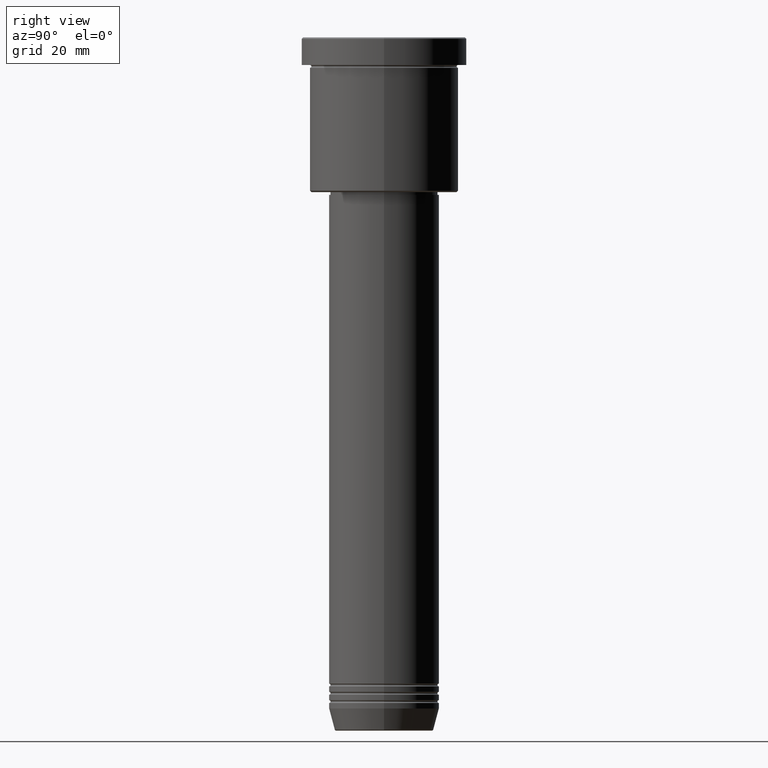
[diagram: clean part render]
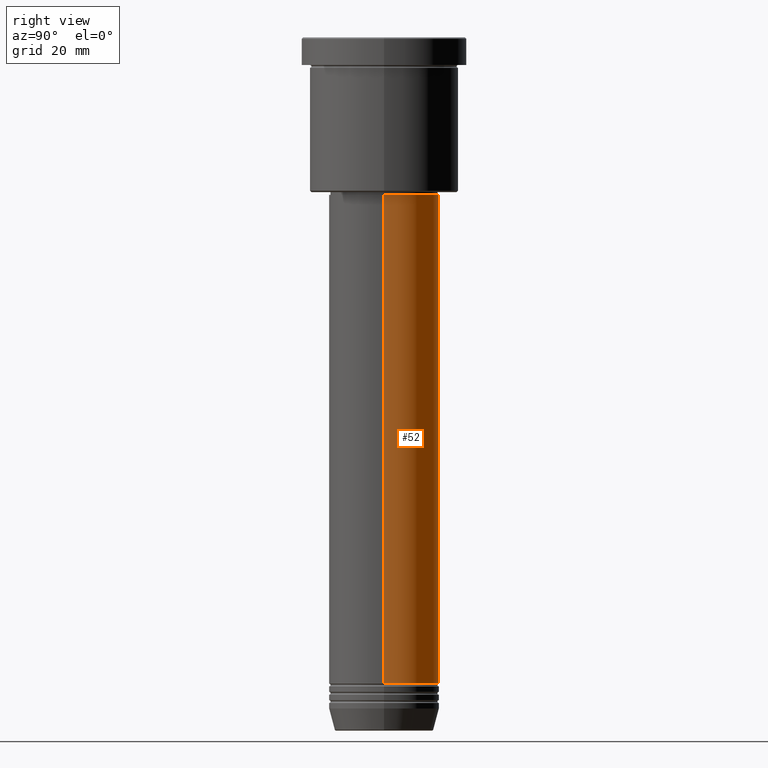
[diagram: same view with one face highlighted and labeled with its STEP entity id]
A machine part, right view. The second image highlights one B-rep face of the part: STEP entity #52.
In plain terms, the highlighted cylindrical surface (partial cylindrical patch) has radius 20 mm, axis along (-0, -0, 1).
Its self-contained STEP definition (entity closure, byte-faithful):
#8 = CARTESIAN_POINT ( 'NONE',  ( 0.000000000000000000, 0.000000000000000000, -57.00000000000000000 ) ) ;
#20 = ORIENTED_EDGE ( 'NONE', *, *, #706, .T. ) ;
#52 = ADVANCED_FACE ( 'NONE', ( #573 ), #197, .T. ) ;
#59 = CIRCLE ( 'NONE', #1038, 20.00000000000000000 ) ;
#85 = CARTESIAN_POINT ( 'NONE',  ( 0.000000000000000000, 0.000000000000000000, -234.0000000000000000 ) ) ;
#88 = LINE ( 'NONE', #1093, #1027 ) ;
#90 = ORIENTED_EDGE ( 'NONE', *, *, #231, .T. ) ;
#183 = ORIENTED_EDGE ( 'NONE', *, *, #377, .F. ) ;
#197 = CYLINDRICAL_SURFACE ( 'NONE', #550, 20.00000000000000000 ) ;
#208 = CARTESIAN_POINT ( 'NONE',  ( 0.000000000000000000, 0.000000000000000000, 0.000000000000000000 ) ) ;
#227 = VERTEX_POINT ( 'NONE', #352 ) ;
#231 = EDGE_CURVE ( 'NONE', #563, #227, #59, .T. ) ;
#324 = LINE ( 'NONE', #810, #784 ) ;
#352 = CARTESIAN_POINT ( 'NONE',  ( -20.00000000000000000, 2.449293598294706513E-15, -234.0000000000000000 ) ) ;
#377 = EDGE_CURVE ( 'NONE', #1172, #653, #644, .T. ) ;
#380 = DIRECTION ( 'NONE',  ( 1.000000000000000000, 0.000000000000000000, 0.000000000000000000 ) ) ;
#438 = DIRECTION ( 'NONE',  ( -0.000000000000000000, -0.000000000000000000, 1.000000000000000000 ) ) ;
#447 = DIRECTION ( 'NONE',  ( -0.000000000000000000, -0.000000000000000000, 1.000000000000000000 ) ) ;
#539 = DIRECTION ( 'NONE',  ( -0.000000000000000000, -0.000000000000000000, 1.000000000000000000 ) ) ;
#550 = AXIS2_PLACEMENT_3D ( 'NONE', #208, #588, #380 ) ;
#563 = VERTEX_POINT ( 'NONE', #670 ) ;
#573 = FACE_OUTER_BOUND ( 'NONE', #696, .T. ) ;
#588 = DIRECTION ( 'NONE',  ( -0.000000000000000000, -0.000000000000000000, 1.000000000000000000 ) ) ;
#644 = CIRCLE ( 'NONE', #1098, 20.00000000000000000 ) ;
#653 = VERTEX_POINT ( 'NONE', #727 ) ;
#666 = EDGE_CURVE ( 'NONE', #563, #1172, #324, .T. ) ;
#670 = CARTESIAN_POINT ( 'NONE',  ( 20.00000000000000000, 0.000000000000000000, -234.0000000000000000 ) ) ;
#696 = EDGE_LOOP ( 'NONE', ( #90, #20, #183, #938 ) ) ;
#706 = EDGE_CURVE ( 'NONE', #227, #653, #88, .T. ) ;
#715 = DIRECTION ( 'NONE',  ( 1.000000000000000000, 0.000000000000000000, 0.000000000000000000 ) ) ;
#727 = CARTESIAN_POINT ( 'NONE',  ( -20.00000000000000000, 2.449293598294706513E-15, -57.00000000000000000 ) ) ;
#743 = DIRECTION ( 'NONE',  ( 1.000000000000000000, 0.000000000000000000, 0.000000000000000000 ) ) ;
#784 = VECTOR ( 'NONE', #438, 1000.000000000000000 ) ;
#810 = CARTESIAN_POINT ( 'NONE',  ( 20.00000000000000000, 0.000000000000000000, 0.000000000000000000 ) ) ;
#938 = ORIENTED_EDGE ( 'NONE', *, *, #666, .F. ) ;
#947 = CARTESIAN_POINT ( 'NONE',  ( 20.00000000000000000, 0.000000000000000000, -57.00000000000000000 ) ) ;
#1014 = DIRECTION ( 'NONE',  ( -0.000000000000000000, -0.000000000000000000, 1.000000000000000000 ) ) ;
#1027 = VECTOR ( 'NONE', #539, 1000.000000000000000 ) ;
#1038 = AXIS2_PLACEMENT_3D ( 'NONE', #85, #447, #715 ) ;
#1093 = CARTESIAN_POINT ( 'NONE',  ( -20.00000000000000000, 2.449293598294706513E-15, 0.000000000000000000 ) ) ;
#1098 = AXIS2_PLACEMENT_3D ( 'NONE', #8, #1014, #743 ) ;
#1172 = VERTEX_POINT ( 'NONE', #947 ) ;